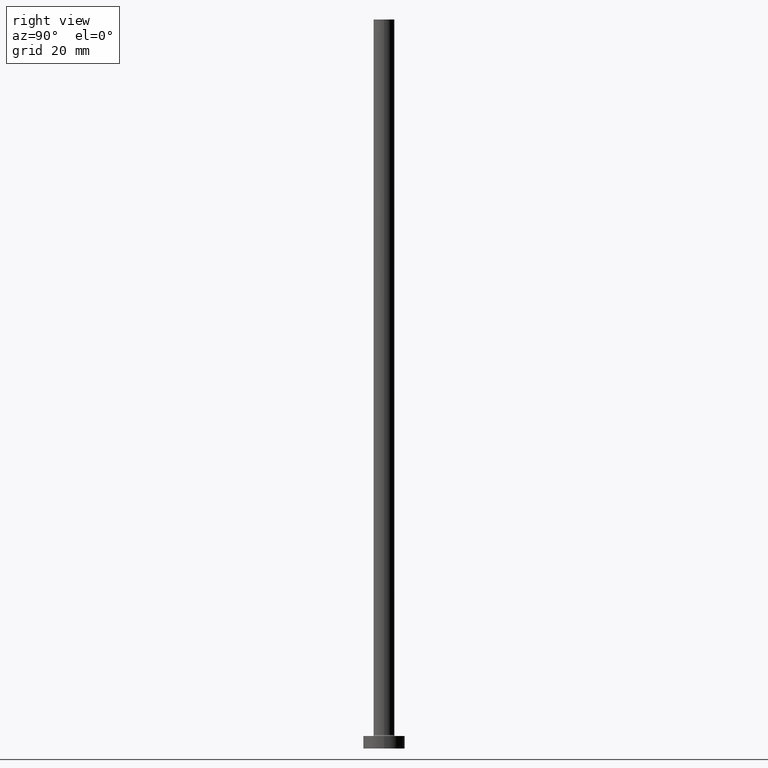
[diagram: clean part render]
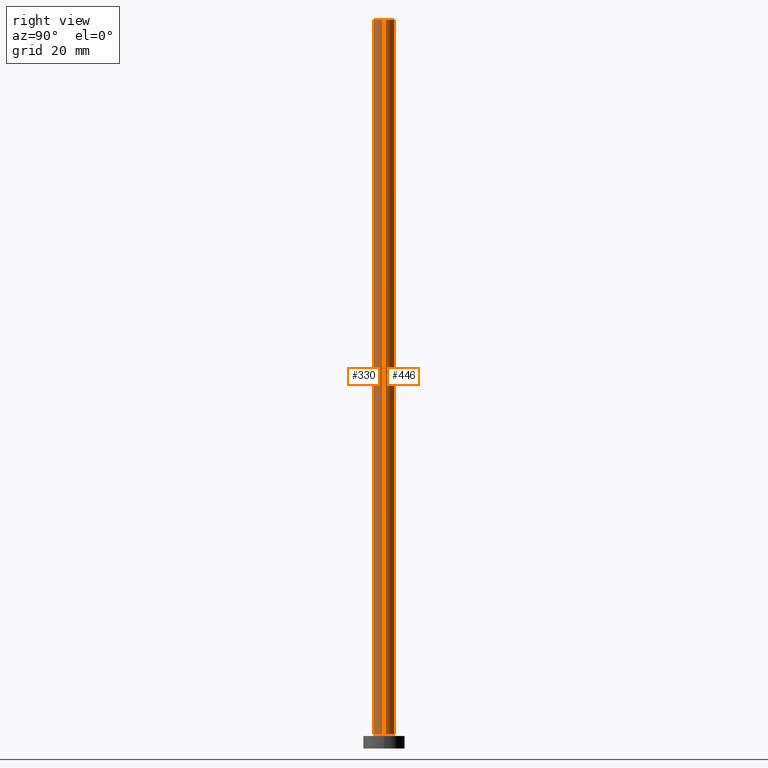
[diagram: same view with one multi-face feature highlighted, each face labeled with its STEP entity id]
A machine part, right view. The highlighted faces form ONE feature: a constant-radius fillet chain: 2 tangent blend faces with common blend radius 2.5 mm. The faces share edges in the B-rep.
Their STEP definitions:
[1] entity #330 (Cylinder):
#7 = DIRECTION ( 'NONE',  ( -0.000000000000000000, -0.000000000000000000, -1.000000000000000000 ) ) ;
#13 = CARTESIAN_POINT ( 'NONE',  ( 2.500000000000000000, 3.061616997868383141E-16, 3.299999999999997158 ) ) ;
#26 = EDGE_CURVE ( 'NONE', #64, #35, #228, .T. ) ;
#32 = CYLINDRICAL_SURFACE ( 'NONE', #74, 2.500000000000000000 ) ;
#35 = VERTEX_POINT ( 'NONE', #151 ) ;
#43 = CIRCLE ( 'NONE', #421, 2.500000000000000000 ) ;
#59 = CARTESIAN_POINT ( 'NONE',  ( 0.000000000000000000, 0.000000000000000000, 175.0000000000000000 ) ) ;
#64 = VERTEX_POINT ( 'NONE', #139 ) ;
#72 = ORIENTED_EDGE ( 'NONE', *, *, #26, .T. ) ;
#74 = AXIS2_PLACEMENT_3D ( 'NONE', #59, #343, #175 ) ;
#94 = ORIENTED_EDGE ( 'NONE', *, *, #170, .T. ) ;
#110 = EDGE_CURVE ( 'NONE', #327, #133, #114, .T. ) ;
#114 = LINE ( 'NONE', #188, #251 ) ;
#133 = VERTEX_POINT ( 'NONE', #13 ) ;
#139 = CARTESIAN_POINT ( 'NONE',  ( -2.500000000000000000, 0.000000000000000000, 175.0000000000000000 ) ) ;
#146 = ORIENTED_EDGE ( 'NONE', *, *, #443, .F. ) ;
#151 = CARTESIAN_POINT ( 'NONE',  ( -2.500000000000000000, 0.000000000000000000, 3.299999999999997158 ) ) ;
#161 = CARTESIAN_POINT ( 'NONE',  ( 0.000000000000000000, 0.000000000000000000, 175.0000000000000000 ) ) ;
#167 = EDGE_LOOP ( 'NONE', ( #392, #146, #72, #94 ) ) ;
#168 = AXIS2_PLACEMENT_3D ( 'NONE', #161, #364, #394 ) ;
#170 = EDGE_CURVE ( 'NONE', #35, #133, #43, .T. ) ;
#175 = DIRECTION ( 'NONE',  ( -1.000000000000000000, 0.000000000000000000, 0.000000000000000000 ) ) ;
#188 = CARTESIAN_POINT ( 'NONE',  ( 2.500000000000000000, 3.061616997868383141E-16, 175.0000000000000000 ) ) ;
#193 = DIRECTION ( 'NONE',  ( 1.000000000000000000, 0.000000000000000000, 0.000000000000000000 ) ) ;
#208 = FACE_OUTER_BOUND ( 'NONE', #167, .T. ) ;
#217 = DIRECTION ( 'NONE',  ( 0.000000000000000000, 0.000000000000000000, 1.000000000000000000 ) ) ;
#228 = LINE ( 'NONE', #437, #296 ) ;
#231 = CARTESIAN_POINT ( 'NONE',  ( 2.500000000000000000, 3.061616997868383141E-16, 175.0000000000000000 ) ) ;
#249 = DIRECTION ( 'NONE',  ( -0.000000000000000000, -0.000000000000000000, -1.000000000000000000 ) ) ;
#251 = VECTOR ( 'NONE', #249, 1000.000000000000000 ) ;
#296 = VECTOR ( 'NONE', #7, 1000.000000000000000 ) ;
#327 = VERTEX_POINT ( 'NONE', #231 ) ;
#330 = ADVANCED_FACE ( 'NONE', ( #208 ), #32, .T. ) ;
#343 = DIRECTION ( 'NONE',  ( -0.000000000000000000, -0.000000000000000000, -1.000000000000000000 ) ) ;
#364 = DIRECTION ( 'NONE',  ( 0.000000000000000000, 0.000000000000000000, 1.000000000000000000 ) ) ;
#368 = CARTESIAN_POINT ( 'NONE',  ( 0.000000000000000000, 0.000000000000000000, 3.299999999999997158 ) ) ;
#392 = ORIENTED_EDGE ( 'NONE', *, *, #110, .F. ) ;
#394 = DIRECTION ( 'NONE',  ( 1.000000000000000000, 0.000000000000000000, 0.000000000000000000 ) ) ;
#412 = CIRCLE ( 'NONE', #168, 2.500000000000000000 ) ;
#421 = AXIS2_PLACEMENT_3D ( 'NONE', #368, #217, #193 ) ;
#437 = CARTESIAN_POINT ( 'NONE',  ( -2.500000000000000000, 0.000000000000000000, 175.0000000000000000 ) ) ;
#443 = EDGE_CURVE ( 'NONE', #64, #327, #412, .T. ) ;
[2] entity #446 (Cylinder):
#7 = DIRECTION ( 'NONE',  ( -0.000000000000000000, -0.000000000000000000, -1.000000000000000000 ) ) ;
#13 = CARTESIAN_POINT ( 'NONE',  ( 2.500000000000000000, 3.061616997868383141E-16, 3.299999999999997158 ) ) ;
#15 = DIRECTION ( 'NONE',  ( -0.000000000000000000, -0.000000000000000000, -1.000000000000000000 ) ) ;
#26 = EDGE_CURVE ( 'NONE', #64, #35, #228, .T. ) ;
#35 = VERTEX_POINT ( 'NONE', #151 ) ;
#42 = CYLINDRICAL_SURFACE ( 'NONE', #85, 2.500000000000000000 ) ;
#46 = FACE_OUTER_BOUND ( 'NONE', #387, .T. ) ;
#52 = ORIENTED_EDGE ( 'NONE', *, *, #270, .T. ) ;
#64 = VERTEX_POINT ( 'NONE', #139 ) ;
#85 = AXIS2_PLACEMENT_3D ( 'NONE', #404, #15, #400 ) ;
#110 = EDGE_CURVE ( 'NONE', #327, #133, #114, .T. ) ;
#114 = LINE ( 'NONE', #188, #251 ) ;
#133 = VERTEX_POINT ( 'NONE', #13 ) ;
#139 = CARTESIAN_POINT ( 'NONE',  ( -2.500000000000000000, 0.000000000000000000, 175.0000000000000000 ) ) ;
#151 = CARTESIAN_POINT ( 'NONE',  ( -2.500000000000000000, 0.000000000000000000, 3.299999999999997158 ) ) ;
#176 = DIRECTION ( 'NONE',  ( 1.000000000000000000, 0.000000000000000000, 0.000000000000000000 ) ) ;
#188 = CARTESIAN_POINT ( 'NONE',  ( 2.500000000000000000, 3.061616997868383141E-16, 175.0000000000000000 ) ) ;
#189 = CARTESIAN_POINT ( 'NONE',  ( 0.000000000000000000, 0.000000000000000000, 175.0000000000000000 ) ) ;
#201 = EDGE_CURVE ( 'NONE', #327, #64, #408, .T. ) ;
#202 = ORIENTED_EDGE ( 'NONE', *, *, #26, .F. ) ;
#205 = ORIENTED_EDGE ( 'NONE', *, *, #201, .F. ) ;
#212 = CIRCLE ( 'NONE', #314, 2.500000000000000000 ) ;
#228 = LINE ( 'NONE', #437, #296 ) ;
#231 = CARTESIAN_POINT ( 'NONE',  ( 2.500000000000000000, 3.061616997868383141E-16, 175.0000000000000000 ) ) ;
#249 = DIRECTION ( 'NONE',  ( -0.000000000000000000, -0.000000000000000000, -1.000000000000000000 ) ) ;
#251 = VECTOR ( 'NONE', #249, 1000.000000000000000 ) ;
#270 = EDGE_CURVE ( 'NONE', #133, #35, #212, .T. ) ;
#282 = DIRECTION ( 'NONE',  ( 1.000000000000000000, 0.000000000000000000, 0.000000000000000000 ) ) ;
#296 = VECTOR ( 'NONE', #7, 1000.000000000000000 ) ;
#306 = CARTESIAN_POINT ( 'NONE',  ( 0.000000000000000000, 0.000000000000000000, 3.299999999999997158 ) ) ;
#314 = AXIS2_PLACEMENT_3D ( 'NONE', #306, #460, #176 ) ;
#320 = DIRECTION ( 'NONE',  ( 0.000000000000000000, 0.000000000000000000, 1.000000000000000000 ) ) ;
#327 = VERTEX_POINT ( 'NONE', #231 ) ;
#337 = ORIENTED_EDGE ( 'NONE', *, *, #110, .T. ) ;
#387 = EDGE_LOOP ( 'NONE', ( #205, #337, #52, #202 ) ) ;
#400 = DIRECTION ( 'NONE',  ( -1.000000000000000000, 0.000000000000000000, 0.000000000000000000 ) ) ;
#404 = CARTESIAN_POINT ( 'NONE',  ( 0.000000000000000000, 0.000000000000000000, 175.0000000000000000 ) ) ;
#408 = CIRCLE ( 'NONE', #442, 2.500000000000000000 ) ;
#437 = CARTESIAN_POINT ( 'NONE',  ( -2.500000000000000000, 0.000000000000000000, 175.0000000000000000 ) ) ;
#442 = AXIS2_PLACEMENT_3D ( 'NONE', #189, #320, #282 ) ;
#446 = ADVANCED_FACE ( 'NONE', ( #46 ), #42, .T. ) ;
#460 = DIRECTION ( 'NONE',  ( 0.000000000000000000, 0.000000000000000000, 1.000000000000000000 ) ) ;